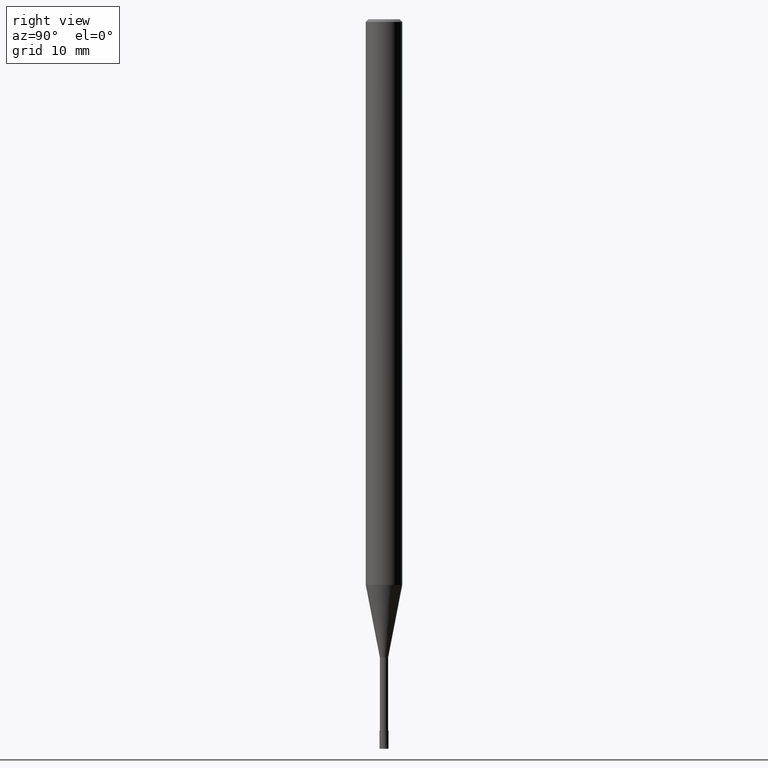
[diagram: clean part render]
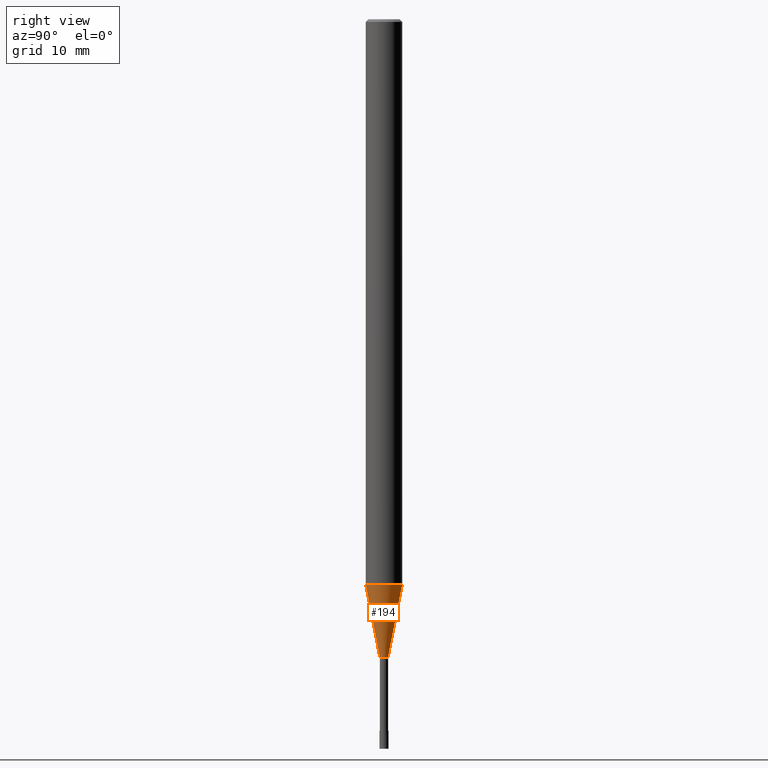
[diagram: same view with one face highlighted and labeled with its STEP entity id]
A machine part, right view. The second image highlights one B-rep face of the part: STEP entity #194.
In plain terms, the highlighted conical surface has half-angle 11 deg.
Its self-contained STEP definition (entity closure, byte-faithful):
#96=VERTEX_POINT('',#234);
#108=EDGE_CURVE('',#200,#96,#247,.T.);
#112=EDGE_CURVE('',#200,#176,#253,.T.);
#122=VERTEX_POINT('',#265);
#160=EDGE_CURVE('',#122,#176,#308,.T.);
#170=EDGE_CURVE('',#96,#122,#319,.T.);
#176=VERTEX_POINT('',#326);
#194=ADVANCED_FACE('',(#346),#347,.T.);
#200=VERTEX_POINT('',#353);
#234=CARTESIAN_POINT('',(0.0,0.44995,-70.0));
#247=LINE('',#394,#395);
#253=CIRCLE('',#402,1.99995);
#265=CARTESIAN_POINT('',(5.51011628902379E-017,-0.44995,-70.0));
#308=LINE('',#472,#473);
#319=CIRCLE('',#489,0.44995);
#326=CARTESIAN_POINT('',(2.44915147732706E-016,-1.99995,-62.026));
#346=FACE_OUTER_BOUND('',#522,.T.);
#347=CONICAL_SURFACE('',#523,1.22495,0.191987597119561);
#353=CARTESIAN_POINT('',(0.0,1.99995,-62.026));
#394=CARTESIAN_POINT('',(-1.50008155311472E-016,1.22495,-66.013));
#395=VECTOR('',#563,1.0);
#402=AXIS2_PLACEMENT_3D('',#572,#573,#574);
#472=CARTESIAN_POINT('',(1.50008155311472E-016,-1.22495,-66.013));
#473=VECTOR('',#651,1.0);
#489=AXIS2_PLACEMENT_3D('',#660,#661,#662);
#522=EDGE_LOOP('',(#699,#700,#701,#702));
#523=AXIS2_PLACEMENT_3D('',#703,#704,#705);
#563=DIRECTION('',(2.33667566290819E-017,-0.190810349433081,-0.981626920244767));
#572=CARTESIAN_POINT('',(0.0,0.0,-62.026));
#573=DIRECTION('',(0.0,0.0,-1.0));
#574=DIRECTION('',(0.0,1.0,0.0));
#651=DIRECTION('',(2.33667566290819E-017,-0.190810349433081,0.981626920244767));
#660=CARTESIAN_POINT('',(0.0,0.0,-70.0));
#661=DIRECTION('',(0.0,0.0,-1.0));
#662=DIRECTION('',(0.0,1.0,0.0));
#699=ORIENTED_EDGE('',*,*,#108,.F.);
#700=ORIENTED_EDGE('',*,*,#112,.T.);
#701=ORIENTED_EDGE('',*,*,#160,.F.);
#702=ORIENTED_EDGE('',*,*,#170,.F.);
#703=CARTESIAN_POINT('',(0.0,0.0,-66.013));
#704=DIRECTION('',(-0.0,-0.0,1.0));
#705=DIRECTION('',(0.0,1.0,0.0));